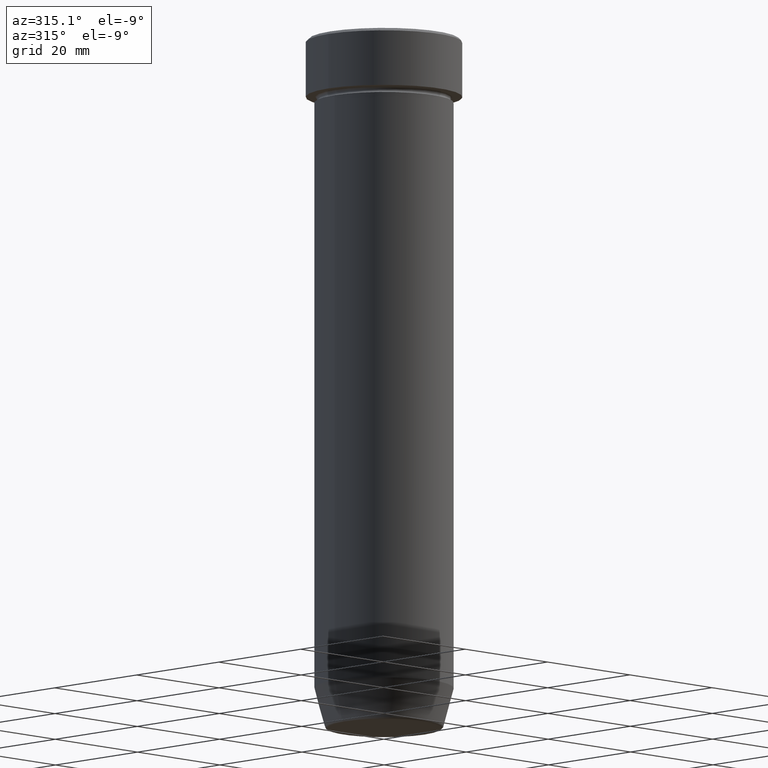
[diagram: clean part render]
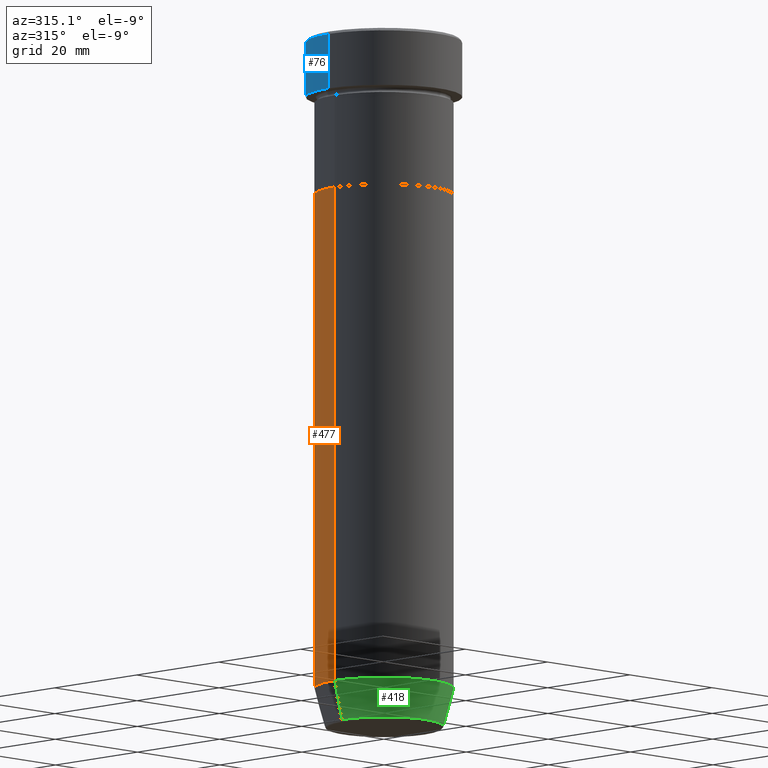
[diagram: same view with three faces highlighted in distinct colors, each labeled with its STEP entity id]
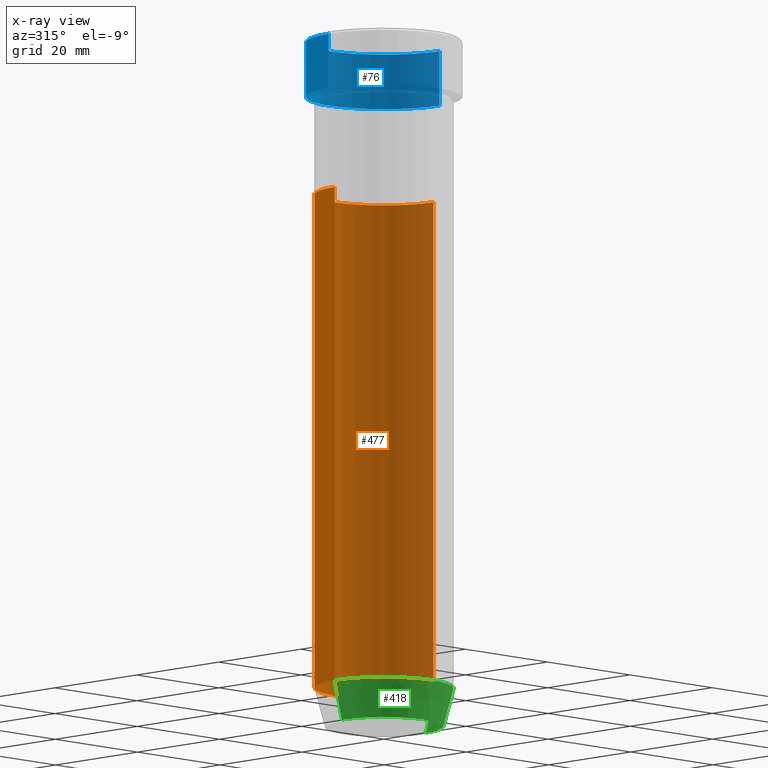
[diagram: x-ray of the same camera — body ghosted, the three highlighted faces saturated]
A machine part, auxiliary view with three faces highlighted in distinct colors.
The next image is the same camera in x-ray (body ghosted, the three faces saturated) — at least one of them is partly hidden behind the body in this view.
Their STEP definitions:

[orange] entity #477 — the highlighted cylindrical surface (partial cylindrical patch) has radius 12 mm, axis along (-0, -0, 1).
#9 = DIRECTION ( 'NONE',  ( -0.000000000000000000, -0.000000000000000000, 1.000000000000000000 ) ) ;
#51 = DIRECTION ( 'NONE',  ( -0.000000000000000000, -0.000000000000000000, 1.000000000000000000 ) ) ;
#52 = VECTOR ( 'NONE', #573, 1000.000000000000000 ) ;
#83 = VERTEX_POINT ( 'NONE', #183 ) ;
#99 = CARTESIAN_POINT ( 'NONE',  ( 12.00000000000000000, 0.000000000000000000, -112.9999999999999858 ) ) ;
#105 = CARTESIAN_POINT ( 'NONE',  ( 12.00000000000000000, 0.000000000000000000, 0.000000000000000000 ) ) ;
#127 = AXIS2_PLACEMENT_3D ( 'NONE', #328, #9, #516 ) ;
#128 = CIRCLE ( 'NONE', #139, 12.00000000000000000 ) ;
#135 = EDGE_CURVE ( 'NONE', #83, #158, #252, .T. ) ;
#136 = CARTESIAN_POINT ( 'NONE',  ( -12.00000000000000000, 1.469576158976823947E-15, -27.00000000000000000 ) ) ;
#139 = AXIS2_PLACEMENT_3D ( 'NONE', #484, #51, #522 ) ;
#150 = DIRECTION ( 'NONE',  ( -0.000000000000000000, -0.000000000000000000, 1.000000000000000000 ) ) ;
#158 = VERTEX_POINT ( 'NONE', #136 ) ;
#173 = ORIENTED_EDGE ( 'NONE', *, *, #337, .F. ) ;
#179 = ORIENTED_EDGE ( 'NONE', *, *, #381, .T. ) ;
#183 = CARTESIAN_POINT ( 'NONE',  ( 12.00000000000000000, 0.000000000000000000, -27.00000000000000000 ) ) ;
#198 = LINE ( 'NONE', #105, #315 ) ;
#224 = EDGE_LOOP ( 'NONE', ( #317, #179, #440, #173 ) ) ;
#229 = VERTEX_POINT ( 'NONE', #466 ) ;
#252 = CIRCLE ( 'NONE', #127, 12.00000000000000000 ) ;
#270 = VERTEX_POINT ( 'NONE', #99 ) ;
#283 = EDGE_CURVE ( 'NONE', #270, #229, #128, .T. ) ;
#315 = VECTOR ( 'NONE', #150, 1000.000000000000000 ) ;
#317 = ORIENTED_EDGE ( 'NONE', *, *, #283, .T. ) ;
#328 = CARTESIAN_POINT ( 'NONE',  ( 0.000000000000000000, 0.000000000000000000, -27.00000000000000000 ) ) ;
#337 = EDGE_CURVE ( 'NONE', #270, #83, #198, .T. ) ;
#346 = LINE ( 'NONE', #386, #52 ) ;
#381 = EDGE_CURVE ( 'NONE', #229, #158, #346, .T. ) ;
#386 = CARTESIAN_POINT ( 'NONE',  ( -12.00000000000000000, 1.469576158976823947E-15, 0.000000000000000000 ) ) ;
#395 = CARTESIAN_POINT ( 'NONE',  ( 0.000000000000000000, 0.000000000000000000, 0.000000000000000000 ) ) ;
#408 = CYLINDRICAL_SURFACE ( 'NONE', #437, 12.00000000000000000 ) ;
#437 = AXIS2_PLACEMENT_3D ( 'NONE', #395, #447, #580 ) ;
#440 = ORIENTED_EDGE ( 'NONE', *, *, #135, .F. ) ;
#447 = DIRECTION ( 'NONE',  ( -0.000000000000000000, -0.000000000000000000, 1.000000000000000000 ) ) ;
#466 = CARTESIAN_POINT ( 'NONE',  ( -12.00000000000000000, 1.469576158976823947E-15, -112.9999999999999858 ) ) ;
#477 = ADVANCED_FACE ( 'NONE', ( #544 ), #408, .T. ) ;
#484 = CARTESIAN_POINT ( 'NONE',  ( 0.000000000000000000, 0.000000000000000000, -112.9999999999999858 ) ) ;
#516 = DIRECTION ( 'NONE',  ( 1.000000000000000000, 0.000000000000000000, 0.000000000000000000 ) ) ;
#522 = DIRECTION ( 'NONE',  ( 1.000000000000000000, 0.000000000000000000, 0.000000000000000000 ) ) ;
#544 = FACE_OUTER_BOUND ( 'NONE', #224, .T. ) ;
#573 = DIRECTION ( 'NONE',  ( -0.000000000000000000, -0.000000000000000000, 1.000000000000000000 ) ) ;
#580 = DIRECTION ( 'NONE',  ( 1.000000000000000000, 0.000000000000000000, 0.000000000000000000 ) ) ;

[blue] entity #76 — the highlighted cylindrical surface (partial cylindrical patch) has radius 13.5 mm, axis along (-0, -0, 1).
#7 = FACE_OUTER_BOUND ( 'NONE', #492, .T. ) ;
#17 = ORIENTED_EDGE ( 'NONE', *, *, #366, .T. ) ;
#19 = DIRECTION ( 'NONE',  ( 1.000000000000000000, 0.000000000000000000, 0.000000000000000000 ) ) ;
#38 = ORIENTED_EDGE ( 'NONE', *, *, #429, .F. ) ;
#39 = EDGE_CURVE ( 'NONE', #590, #169, #426, .T. ) ;
#60 = VECTOR ( 'NONE', #244, 1000.000000000000000 ) ;
#65 = LINE ( 'NONE', #350, #88 ) ;
#68 = ORIENTED_EDGE ( 'NONE', *, *, #242, .T. ) ;
#71 = CARTESIAN_POINT ( 'NONE',  ( -13.50000000000000000, 1.653273178848926867E-15, -0.5000000000000091038 ) ) ;
#76 = ADVANCED_FACE ( 'NONE', ( #7 ), #371, .T. ) ;
#88 = VECTOR ( 'NONE', #266, 1000.000000000000000 ) ;
#133 = ORIENTED_EDGE ( 'NONE', *, *, #39, .T. ) ;
#156 = CARTESIAN_POINT ( 'NONE',  ( -13.50000000000000000, 1.653273178848926867E-15, -10.00000000000000000 ) ) ;
#169 = VERTEX_POINT ( 'NONE', #193 ) ;
#193 = CARTESIAN_POINT ( 'NONE',  ( 13.50000000000000000, 0.000000000000000000, -0.5000000000000091038 ) ) ;
#242 = EDGE_CURVE ( 'NONE', #356, #590, #528, .T. ) ;
#244 = DIRECTION ( 'NONE',  ( -0.000000000000000000, -0.000000000000000000, 1.000000000000000000 ) ) ;
#251 = CARTESIAN_POINT ( 'NONE',  ( -13.50000000000000000, 1.653273178848926867E-15, 0.000000000000000000 ) ) ;
#262 = CARTESIAN_POINT ( 'NONE',  ( 13.50000000000000000, 0.000000000000000000, -10.00000000000000000 ) ) ;
#266 = DIRECTION ( 'NONE',  ( -0.000000000000000000, -0.000000000000000000, 1.000000000000000000 ) ) ;
#279 = DIRECTION ( 'NONE',  ( -0.000000000000000000, -0.000000000000000000, 1.000000000000000000 ) ) ;
#300 = AXIS2_PLACEMENT_3D ( 'NONE', #359, #545, #538 ) ;
#343 = DIRECTION ( 'NONE',  ( -0.000000000000000000, -0.000000000000000000, 1.000000000000000000 ) ) ;
#350 = CARTESIAN_POINT ( 'NONE',  ( 13.50000000000000000, 0.000000000000000000, 0.000000000000000000 ) ) ;
#356 = VERTEX_POINT ( 'NONE', #156 ) ;
#359 = CARTESIAN_POINT ( 'NONE',  ( 0.000000000000000000, 0.000000000000000000, -0.5000000000000091038 ) ) ;
#366 = EDGE_CURVE ( 'NONE', #394, #356, #535, .T. ) ;
#369 = AXIS2_PLACEMENT_3D ( 'NONE', #555, #279, #564 ) ;
#371 = CYLINDRICAL_SURFACE ( 'NONE', #369, 13.50000000000000000 ) ;
#394 = VERTEX_POINT ( 'NONE', #262 ) ;
#426 = CIRCLE ( 'NONE', #300, 13.50000000000000000 ) ;
#429 = EDGE_CURVE ( 'NONE', #394, #169, #65, .T. ) ;
#433 = CARTESIAN_POINT ( 'NONE',  ( 0.000000000000000000, 0.000000000000000000, -10.00000000000000000 ) ) ;
#452 = AXIS2_PLACEMENT_3D ( 'NONE', #433, #343, #19 ) ;
#492 = EDGE_LOOP ( 'NONE', ( #17, #68, #133, #38 ) ) ;
#528 = LINE ( 'NONE', #251, #60 ) ;
#535 = CIRCLE ( 'NONE', #452, 13.50000000000000000 ) ;
#538 = DIRECTION ( 'NONE',  ( 1.000000000000000000, 0.000000000000000000, 0.000000000000000000 ) ) ;
#545 = DIRECTION ( 'NONE',  ( 0.000000000000000000, 0.000000000000000000, -1.000000000000000000 ) ) ;
#555 = CARTESIAN_POINT ( 'NONE',  ( 0.000000000000000000, 0.000000000000000000, 0.000000000000000000 ) ) ;
#564 = DIRECTION ( 'NONE',  ( 1.000000000000000000, 0.000000000000000000, 0.000000000000000000 ) ) ;
#590 = VERTEX_POINT ( 'NONE', #71 ) ;

[green] entity #418 — the highlighted conical surface has half-angle 15 deg.
#11 = CARTESIAN_POINT ( 'NONE',  ( -10.12435565298213369, 1.239875974385398152E-15, -120.0000000000000000 ) ) ;
#28 = VERTEX_POINT ( 'NONE', #172 ) ;
#55 = DIRECTION ( 'NONE',  ( -0.2588190451025214611, 3.169619151431774186E-17, 0.9659258262890679791 ) ) ;
#59 = LINE ( 'NONE', #11, #473 ) ;
#72 = VERTEX_POINT ( 'NONE', #149 ) ;
#86 = ORIENTED_EDGE ( 'NONE', *, *, #297, .F. ) ;
#99 = CARTESIAN_POINT ( 'NONE',  ( 12.00000000000000000, 0.000000000000000000, -112.9999999999999858 ) ) ;
#149 = CARTESIAN_POINT ( 'NONE',  ( 10.22365507213718416, 0.000000000000000000, -119.6294095225512564 ) ) ;
#159 = DIRECTION ( 'NONE',  ( 1.000000000000000000, 0.000000000000000000, 0.000000000000000000 ) ) ;
#171 = LINE ( 'NONE', #508, #525 ) ;
#172 = CARTESIAN_POINT ( 'NONE',  ( -10.22365507213718416, 1.360806402472381955E-15, -119.6294095225512564 ) ) ;
#180 = CARTESIAN_POINT ( 'NONE',  ( 0.000000000000000000, 0.000000000000000000, -120.0000000000000000 ) ) ;
#206 = AXIS2_PLACEMENT_3D ( 'NONE', #180, #412, #222 ) ;
#208 = DIRECTION ( 'NONE',  ( -0.000000000000000000, -0.000000000000000000, 1.000000000000000000 ) ) ;
#214 = ORIENTED_EDGE ( 'NONE', *, *, #384, .T. ) ;
#220 = DIRECTION ( 'NONE',  ( 0.2588190451025214611, 0.000000000000000000, 0.9659258262890679791 ) ) ;
#222 = DIRECTION ( 'NONE',  ( 1.000000000000000000, 0.000000000000000000, 0.000000000000000000 ) ) ;
#227 = ORIENTED_EDGE ( 'NONE', *, *, #373, .F. ) ;
#229 = VERTEX_POINT ( 'NONE', #466 ) ;
#270 = VERTEX_POINT ( 'NONE', #99 ) ;
#293 = CARTESIAN_POINT ( 'NONE',  ( 0.000000000000000000, 0.000000000000000000, -112.9999999999999858 ) ) ;
#297 = EDGE_CURVE ( 'NONE', #28, #229, #59, .T. ) ;
#298 = DIRECTION ( 'NONE',  ( -1.000000000000000000, 0.000000000000000000, 0.000000000000000000 ) ) ;
#325 = AXIS2_PLACEMENT_3D ( 'NONE', #293, #208, #159 ) ;
#339 = CIRCLE ( 'NONE', #549, 10.22365507213718416 ) ;
#345 = EDGE_LOOP ( 'NONE', ( #86, #214, #403, #227 ) ) ;
#373 = EDGE_CURVE ( 'NONE', #229, #270, #503, .T. ) ;
#378 = CONICAL_SURFACE ( 'NONE', #206, 10.12435565298213369, 0.2617993877991502405 ) ;
#384 = EDGE_CURVE ( 'NONE', #28, #72, #339, .T. ) ;
#403 = ORIENTED_EDGE ( 'NONE', *, *, #521, .T. ) ;
#412 = DIRECTION ( 'NONE',  ( -0.000000000000000000, -0.000000000000000000, 1.000000000000000000 ) ) ;
#418 = ADVANCED_FACE ( 'NONE', ( #461 ), #378, .T. ) ;
#461 = FACE_OUTER_BOUND ( 'NONE', #345, .T. ) ;
#466 = CARTESIAN_POINT ( 'NONE',  ( -12.00000000000000000, 1.469576158976823947E-15, -112.9999999999999858 ) ) ;
#473 = VECTOR ( 'NONE', #55, 1000.000000000000114 ) ;
#479 = DIRECTION ( 'NONE',  ( -0.000000000000000000, -0.000000000000000000, 1.000000000000000000 ) ) ;
#503 = CIRCLE ( 'NONE', #325, 12.00000000000000000 ) ;
#508 = CARTESIAN_POINT ( 'NONE',  ( 10.12435565298213369, 0.000000000000000000, -120.0000000000000000 ) ) ;
#521 = EDGE_CURVE ( 'NONE', #72, #270, #171, .T. ) ;
#525 = VECTOR ( 'NONE', #220, 1000.000000000000114 ) ;
#549 = AXIS2_PLACEMENT_3D ( 'NONE', #569, #479, #298 ) ;
#569 = CARTESIAN_POINT ( 'NONE',  ( 0.000000000000000000, 0.000000000000000000, -119.6294095225512564 ) ) ;